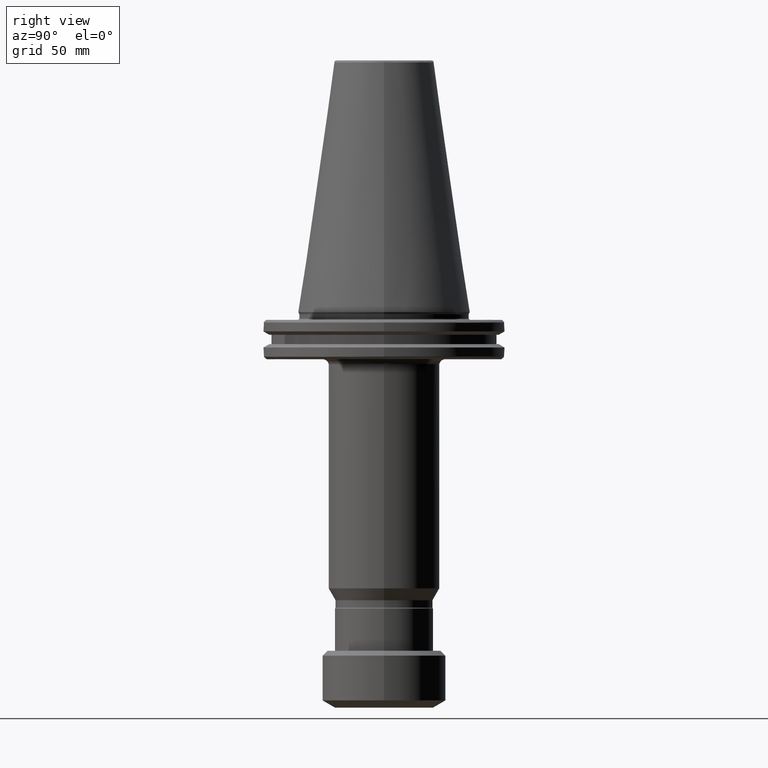
[diagram: clean part render]
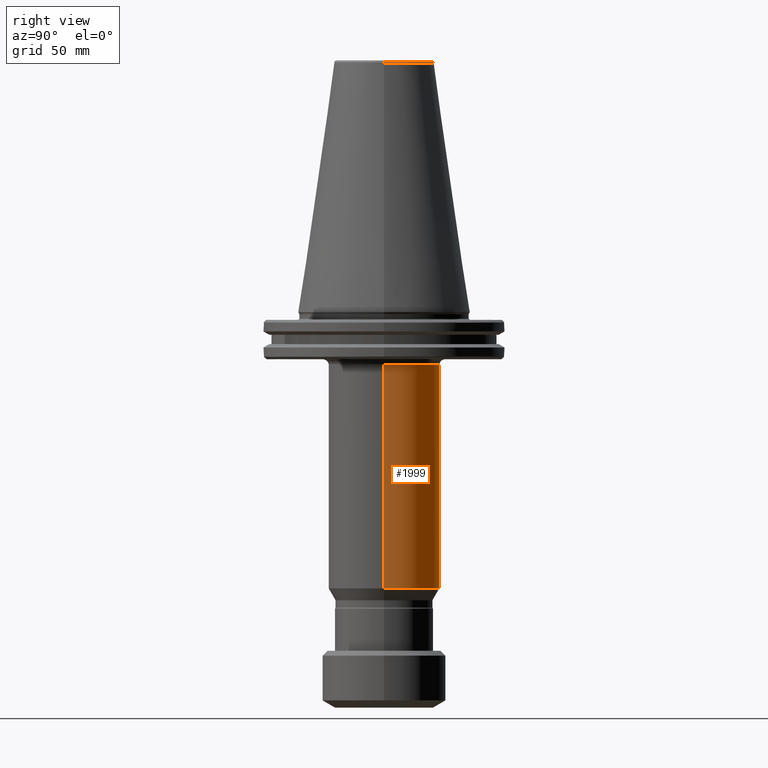
[diagram: same view with one face highlighted and labeled with its STEP entity id]
A machine part, right view. The second image highlights one B-rep face of the part: STEP entity #1999.
In plain terms, the highlighted cylindrical surface (partial cylindrical patch) has radius 22.5 mm, axis along (0, 0, 1).
Its self-contained STEP definition (entity closure, byte-faithful):
#55 = CIRCLE ( 'NONE', #2649, 22.49999999999999300 ) ;
#117 = VERTEX_POINT ( 'NONE', #636 ) ;
#122 = CARTESIAN_POINT ( 'NONE',  ( -22.49999999999999300, 2.755455298081543600E-015, 88.34764052968309000 ) ) ;
#351 = CARTESIAN_POINT ( 'NONE',  ( 0.0000000000000000000, 0.0000000000000000000, -21.10000000000000900 ) ) ;
#361 = VECTOR ( 'NONE', #2592, 1000.000000000000000 ) ;
#486 = EDGE_CURVE ( 'NONE', #117, #1108, #782, .T. ) ;
#513 = ORIENTED_EDGE ( 'NONE', *, *, #1962, .T. ) ;
#636 = CARTESIAN_POINT ( 'NONE',  ( 22.50000000000000000, 0.0000000000000000000, -111.8079588950837000 ) ) ;
#641 = DIRECTION ( 'NONE',  ( -1.000000000000000000, 0.0000000000000000000, 0.0000000000000000000 ) ) ;
#649 = ORIENTED_EDGE ( 'NONE', *, *, #726, .T. ) ;
#726 = EDGE_CURVE ( 'NONE', #1155, #3074, #2634, .T. ) ;
#782 = LINE ( 'NONE', #1926, #910 ) ;
#910 = VECTOR ( 'NONE', #1013, 1000.000000000000000 ) ;
#1013 = DIRECTION ( 'NONE',  ( 0.0000000000000000000, 0.0000000000000000000, 1.000000000000000000 ) ) ;
#1108 = VERTEX_POINT ( 'NONE', #1452 ) ;
#1155 = VERTEX_POINT ( 'NONE', #2709 ) ;
#1190 = CARTESIAN_POINT ( 'NONE',  ( 0.0000000000000000000, 0.0000000000000000000, -111.8079588950837000 ) ) ;
#1365 = CYLINDRICAL_SURFACE ( 'NONE', #2544, 22.49999999999999300 ) ;
#1418 = AXIS2_PLACEMENT_3D ( 'NONE', #351, #2280, #641 ) ;
#1436 = EDGE_CURVE ( 'NONE', #3074, #1108, #3224, .T. ) ;
#1452 = CARTESIAN_POINT ( 'NONE',  ( 22.49999999999999300, 0.0000000000000000000, -21.10000000000000900 ) ) ;
#1481 = DIRECTION ( 'NONE',  ( 1.000000000000000000, 0.0000000000000000000, 0.0000000000000000000 ) ) ;
#1750 = DIRECTION ( 'NONE',  ( 1.000000000000000000, 0.0000000000000000000, 0.0000000000000000000 ) ) ;
#1926 = CARTESIAN_POINT ( 'NONE',  ( 22.49999999999999300, 0.0000000000000000000, 88.34764052968309000 ) ) ;
#1962 = EDGE_CURVE ( 'NONE', #117, #1155, #55, .T. ) ;
#1999 = ADVANCED_FACE ( 'NONE', ( #2942 ), #1365, .T. ) ;
#2005 = CARTESIAN_POINT ( 'NONE',  ( 0.0000000000000000000, 0.0000000000000000000, 88.34764052968309000 ) ) ;
#2104 = EDGE_LOOP ( 'NONE', ( #513, #649, #2996, #3393 ) ) ;
#2280 = DIRECTION ( 'NONE',  ( 0.0000000000000000000, 0.0000000000000000000, -1.000000000000000000 ) ) ;
#2544 = AXIS2_PLACEMENT_3D ( 'NONE', #2005, #2735, #1750 ) ;
#2592 = DIRECTION ( 'NONE',  ( 0.0000000000000000000, 0.0000000000000000000, 1.000000000000000000 ) ) ;
#2634 = LINE ( 'NONE', #122, #361 ) ;
#2640 = CARTESIAN_POINT ( 'NONE',  ( -22.49999999999999300, 2.755455298081543600E-015, -21.10000000000000900 ) ) ;
#2649 = AXIS2_PLACEMENT_3D ( 'NONE', #1190, #2980, #1481 ) ;
#2709 = CARTESIAN_POINT ( 'NONE',  ( -22.50000000000000000, 2.755455298081544800E-015, -111.8079588950837000 ) ) ;
#2735 = DIRECTION ( 'NONE',  ( 0.0000000000000000000, 0.0000000000000000000, 1.000000000000000000 ) ) ;
#2942 = FACE_OUTER_BOUND ( 'NONE', #2104, .T. ) ;
#2980 = DIRECTION ( 'NONE',  ( 0.0000000000000000000, 0.0000000000000000000, 1.000000000000000000 ) ) ;
#2996 = ORIENTED_EDGE ( 'NONE', *, *, #1436, .T. ) ;
#3074 = VERTEX_POINT ( 'NONE', #2640 ) ;
#3224 = CIRCLE ( 'NONE', #1418, 22.49999999999998900 ) ;
#3393 = ORIENTED_EDGE ( 'NONE', *, *, #486, .F. ) ;